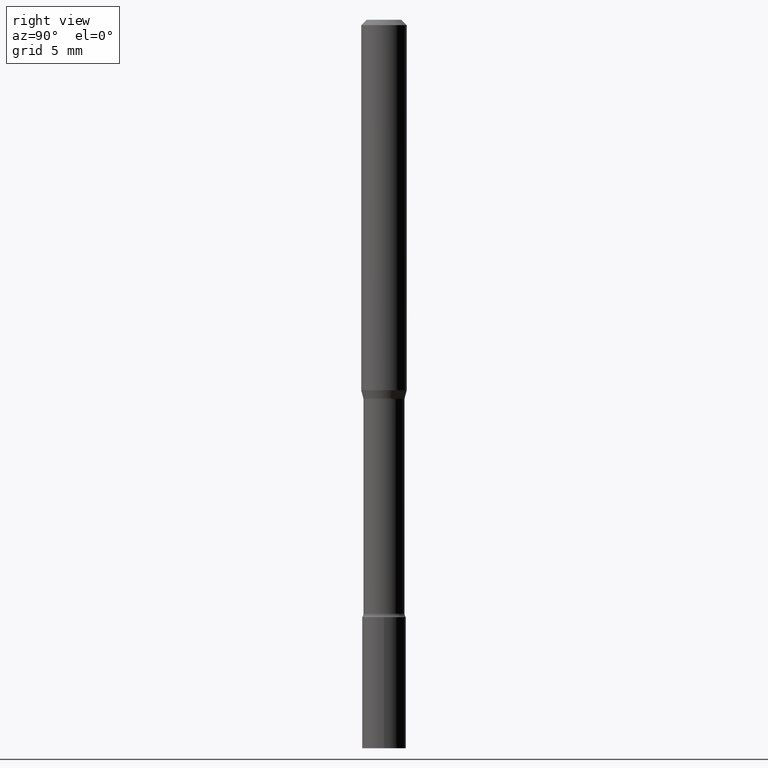
[diagram: clean part render]
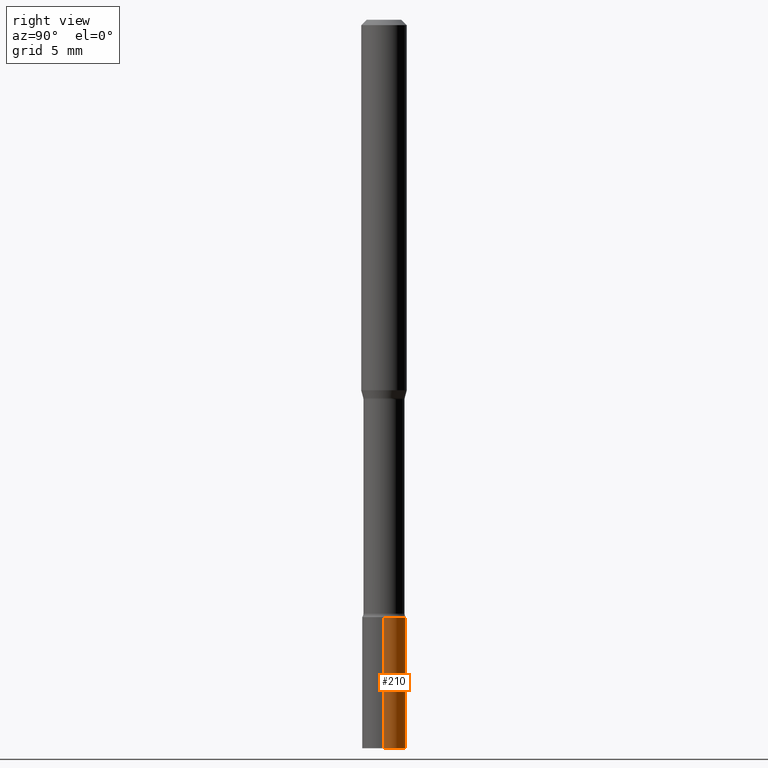
[diagram: same view with one face highlighted and labeled with its STEP entity id]
A machine part, right view. The second image highlights one B-rep face of the part: STEP entity #210.
In plain terms, the highlighted cylindrical surface (edge-blend (fillet) strip) has radius 1.524 mm, axis along (-0, 0, 1).
Its self-contained STEP definition (entity closure, byte-faithful):
#2 = LINE ( 'NONE', #295, #329 ) ;
#15 = AXIS2_PLACEMENT_3D ( 'NONE', #473, #229, #435 ) ;
#39 = DIRECTION ( 'NONE',  ( -2.445468806185136597E-29, 3.491481338843145583E-15, 1.000000000000000000 ) ) ;
#51 = VERTEX_POINT ( 'NONE', #461 ) ;
#65 = ORIENTED_EDGE ( 'NONE', *, *, #83, .T. ) ;
#69 = DIRECTION ( 'NONE',  ( 1.000000000000000000, -6.982962677686267499E-15, 4.876176775795936353E-29 ) ) ;
#83 = EDGE_CURVE ( 'NONE', #97, #51, #253, .T. ) ;
#87 = DIRECTION ( 'NONE',  ( 1.000000000000000000, -6.982962677686268288E-15, 0.000000000000000000 ) ) ;
#97 = VERTEX_POINT ( 'NONE', #108 ) ;
#108 = CARTESIAN_POINT ( 'NONE',  ( 0.05999999999999999778, -7.401940438347467010E-15, -2.000000000000000000 ) ) ;
#109 = VECTOR ( 'NONE', #325, 39.37007874015748143 ) ;
#142 = AXIS2_PLACEMENT_3D ( 'NONE', #321, #39, #69 ) ;
#198 = CYLINDRICAL_SURFACE ( 'NONE', #142, 0.05999999999999999778 ) ;
#210 = ADVANCED_FACE ( 'NONE', ( #371 ), #198, .T. ) ;
#229 = DIRECTION ( 'NONE',  ( -2.445468806185136597E-29, 3.491481338843145583E-15, 1.000000000000000000 ) ) ;
#239 = EDGE_CURVE ( 'NONE', #51, #419, #477, .T. ) ;
#240 = CARTESIAN_POINT ( 'NONE',  ( 0.05999999999999999778, -6.145007156363934742E-15, -1.639999999999999902 ) ) ;
#242 = ORIENTED_EDGE ( 'NONE', *, *, #333, .F. ) ;
#253 = CIRCLE ( 'NONE', #15, 0.05999999999999999778 ) ;
#263 = VERTEX_POINT ( 'NONE', #240 ) ;
#269 = AXIS2_PLACEMENT_3D ( 'NONE', #304, #344, #87 ) ;
#295 = CARTESIAN_POINT ( 'NONE',  ( 0.05999999999999999778, -4.189777606611760421E-16, 2.925706065477561756E-30 ) ) ;
#304 = CARTESIAN_POINT ( 'NONE',  ( 4.010568842143624288E-29, -5.726029395702758897E-15, -1.639999999999999902 ) ) ;
#306 = ORIENTED_EDGE ( 'NONE', *, *, #239, .T. ) ;
#309 = ORIENTED_EDGE ( 'NONE', *, *, #412, .F. ) ;
#320 = EDGE_LOOP ( 'NONE', ( #65, #306, #309, #242 ) ) ;
#321 = CARTESIAN_POINT ( 'NONE',  ( 0.000000000000000000, 0.000000000000000000, 0.000000000000000000 ) ) ;
#325 = DIRECTION ( 'NONE',  ( -2.445468806185136877E-29, 3.491481338843145188E-15, 1.000000000000000000 ) ) ;
#329 = VECTOR ( 'NONE', #373, 39.37007874015748143 ) ;
#333 = EDGE_CURVE ( 'NONE', #97, #263, #2, .T. ) ;
#344 = DIRECTION ( 'NONE',  ( -2.445468806185136597E-29, 3.491481338843145583E-15, 1.000000000000000000 ) ) ;
#371 = FACE_OUTER_BOUND ( 'NONE', #320, .T. ) ;
#373 = DIRECTION ( 'NONE',  ( -2.445468806185136877E-29, 3.491481338843145188E-15, 1.000000000000000000 ) ) ;
#395 = CIRCLE ( 'NONE', #269, 0.05999999999999999778 ) ;
#412 = EDGE_CURVE ( 'NONE', #263, #419, #395, .T. ) ;
#419 = VERTEX_POINT ( 'NONE', #459 ) ;
#435 = DIRECTION ( 'NONE',  ( 1.000000000000000000, -6.982962677686268288E-15, 0.000000000000000000 ) ) ;
#442 = CARTESIAN_POINT ( 'NONE',  ( -0.05999999999999999778, 4.263256414560600957E-16, -2.951361054152943413E-30 ) ) ;
#459 = CARTESIAN_POINT ( 'NONE',  ( -0.05999999999999999778, -5.928170395238464936E-15, -1.639999999999999902 ) ) ;
#461 = CARTESIAN_POINT ( 'NONE',  ( -0.05999999999999999778, -5.928170395238464936E-15, -2.000000000000000000 ) ) ;
#473 = CARTESIAN_POINT ( 'NONE',  ( 4.890937612370273194E-29, -6.982962677686291165E-15, -2.000000000000000000 ) ) ;
#477 = LINE ( 'NONE', #442, #109 ) ;